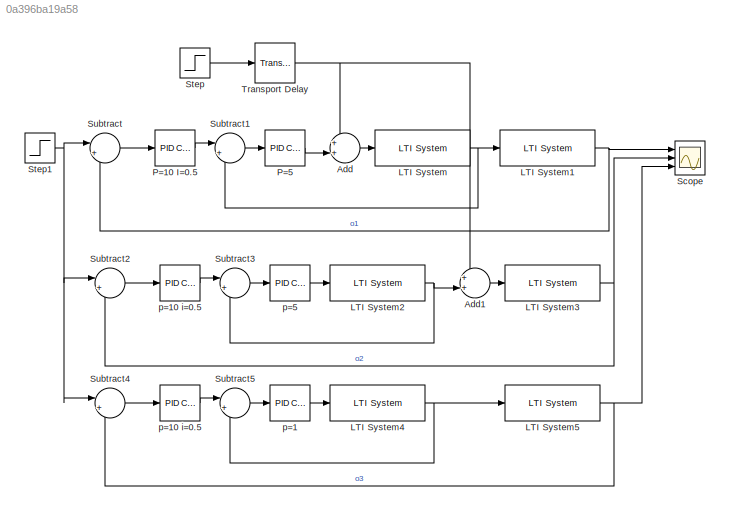
MODEL slx_0a396ba19a58
KIND model
CONFIG AbsTol = auto
CONFIG EnableMultiTasking = off
CONFIG FixedStep = auto
CONFIG MaxStep = auto
CONFIG MinStep = auto
CONFIG RelTol = 1e-3
CONFIG SampleTimeConstraint = Unconstrained
CONFIG Solver = VariableStepAuto
CONFIG SolverName = VariableStepAuto
CONFIG StartTime = 0.0
CONFIG StopTime = 50.0
BLOCK [Sum] Add
  Inputs = ++|
  Ports = [2, 1]
BLOCK [Sum] Add1
  Inputs = ++|
  Ports = [2, 1]
BLOCK [Reference] LTI System  REF=cstblocks/LTI System
  Ports = [1, 1]
  SourceBlock = cstblocks/LTI System
  SourceProductBaseCode = CT
  SourceType = LTI Block
BLOCK [Reference] LTI System1  REF=cstblocks/LTI System
  Ports = [1, 1]
  SourceBlock = cstblocks/LTI System
  SourceProductBaseCode = CT
  SourceType = LTI Block
BLOCK [Reference] LTI System2  REF=cstblocks/LTI System
  Ports = [1, 1]
  SourceBlock = cstblocks/LTI System
  SourceProductBaseCode = CT
  SourceType = LTI Block
BLOCK [Reference] LTI System3  REF=cstblocks/LTI System
  Ports = [1, 1]
  SourceBlock = cstblocks/LTI System
  SourceProductBaseCode = CT
  SourceType = LTI Block
BLOCK [Reference] LTI System4  REF=cstblocks/LTI System
  Ports = [1, 1]
  SourceBlock = cstblocks/LTI System
  SourceProductBaseCode = CT
  SourceType = LTI Block
BLOCK [Reference] LTI System5  REF=cstblocks/LTI System
  Ports = [1, 1]
  SourceBlock = cstblocks/LTI System
  SourceProductBaseCode = CT
  SourceType = LTI Block
BLOCK [Reference] P=10 I=0.5  REF=simulink/Continuous/PID Controller
  Ports = [1, 1]
  SourceBlock = simulink/Continuous/PID Controller
  SourceProductBaseCode = SL
  SourceType = PID 1dof
BLOCK [Reference] P=5  REF=simulink/Continuous/PID Controller
  Ports = [1, 1]
  SourceBlock = simulink/Continuous/PID Controller
  SourceProductBaseCode = SL
  SourceType = PID 1dof
BLOCK [Scope] Scope
  Floating = off
  NumInputPorts = 3
  Ports = [3]
  ScopeSpecificationString = Simulink.scopes.TimeScopeBlockCfg('CurrentConfiguration', extmgr.ConfigurationSet(extmgr.Configuration('Core','General UI',true),extmgr.Configuration('Core','Source UI',true),extmgr.Configuration('Sources','WiredSimulink',true),extmgr.Configuration('Visuals','Time Domain',true,'SerializedDisplays',{struct('MinYLimReal','-0.16285','MaxYLimReal','1.46566','YLabelReal','','MinYLimMag','0.00000','MaxY...<+1330ch>
BLOCK [Step] Step
  After = 3
  SampleTime = 0
BLOCK [Step] Step1
  SampleTime = 0
BLOCK [Sum] Subtract
  Inputs = |+-
  Ports = [2, 1]
BLOCK [Sum] Subtract1
  Inputs = |+-
  Ports = [2, 1]
BLOCK [Sum] Subtract2
  Inputs = |+-
  Ports = [2, 1]
BLOCK [Sum] Subtract3
  Inputs = |+-
  Ports = [2, 1]
BLOCK [Sum] Subtract4
  Inputs = |+-
  Ports = [2, 1]
BLOCK [Sum] Subtract5
  Inputs = |+-
  Ports = [2, 1]
BLOCK [TransportDelay] Transport Delay
  DelayTime = 15
  Ports = [1, 1]
BLOCK [Reference] p=1  REF=simulink/Continuous/PID Controller
  Ports = [1, 1]
  SourceBlock = simulink/Continuous/PID Controller
  SourceProductBaseCode = SL
  SourceType = PID 1dof
BLOCK [Reference] p=10  i=0.5  REF=simulink/Continuous/PID Controller
  Ports = [1, 1]
  SourceBlock = simulink/Continuous/PID Controller
  SourceProductBaseCode = SL
  SourceType = PID 1dof
BLOCK [Reference] p=10 i=0.5  REF=simulink/Continuous/PID Controller
  Ports = [1, 1]
  SourceBlock = simulink/Continuous/PID Controller
  SourceProductBaseCode = SL
  SourceType = PID 1dof
BLOCK [Reference] p=5  REF=simulink/Continuous/PID Controller
  Ports = [1, 1]
  SourceBlock = simulink/Continuous/PID Controller
  SourceProductBaseCode = SL
  SourceType = PID 1dof
LINE Add1:1 -> LTI System3:1
LINE Add:1 -> LTI System:1
NET LTI System1:1 -> Scope:1, Subtract:2
NET LTI System2:1 -> Add1:2, Subtract3:2
NET LTI System3:1 -> Scope:2, Subtract2:2
NET LTI System4:1 -> LTI System5:1, Subtract5:2
NET LTI System5:1 -> Scope:3, Subtract4:2
NET LTI System:1 -> LTI System1:1, Subtract1:2
LINE P=10 I=0.5:1 -> Subtract1:1
LINE P=5:1 -> Add:2
NET Step1:1 -> Subtract2:1, Subtract4:1, Subtract:1
LINE Step:1 -> Transport Delay:1
LINE Subtract1:1 -> P=5:1
LINE Subtract2:1 -> p=10 i=0.5:1
LINE Subtract3:1 -> p=5:1
LINE Subtract4:1 -> p=10  i=0.5:1
LINE Subtract5:1 -> p=1:1
LINE Subtract:1 -> P=10 I=0.5:1
NET Transport Delay:1 -> Add1:1, Add:1
LINE p=10  i=0.5:1 -> Subtract5:1
LINE p=10 i=0.5:1 -> Subtract3:1
LINE p=1:1 -> LTI System4:1
LINE p=5:1 -> LTI System2:1
note: NET lines group one-source signal fan-out (src -> all destinations, sorted); 1:1 wires keep LINE
